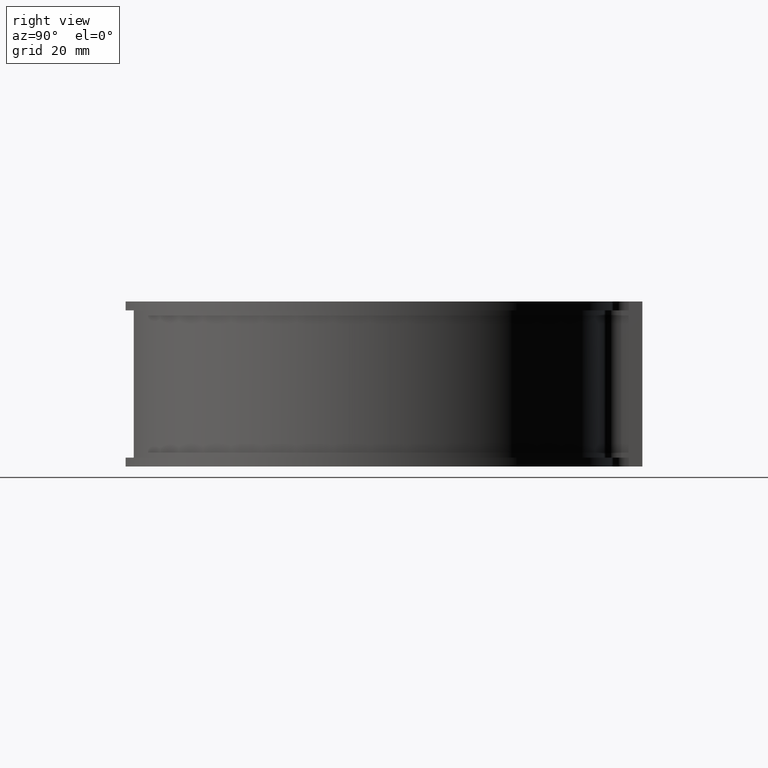
[diagram: clean part render]
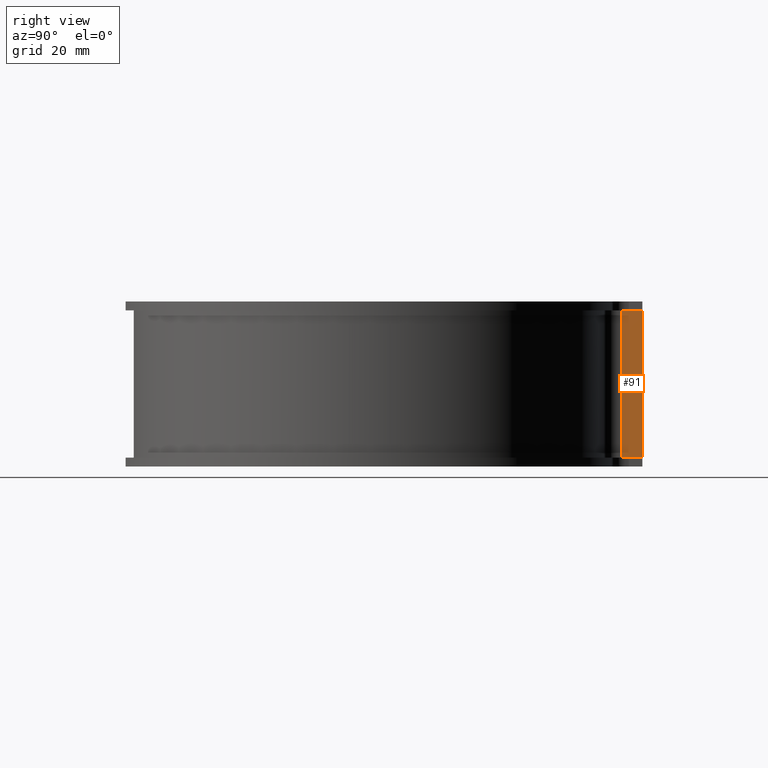
[diagram: same view with one face highlighted and labeled with its STEP entity id]
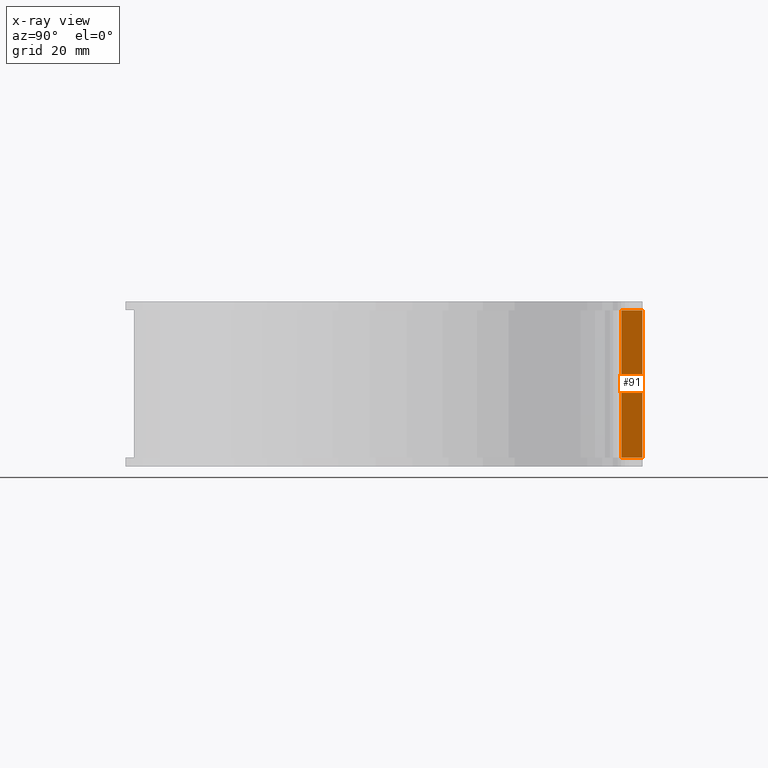
[diagram: x-ray of the same camera — body ghosted, the highlighted face saturated]
A machine part, right view. The second image highlights one B-rep face of the part: STEP entity #91.
The next image is the same camera in x-ray: the body ghosted, the highlighted face saturated — about 0% of this face is hidden behind the body in this view.
In plain terms, the highlighted planar face has unit normal (1, 0, 0).
Its self-contained STEP definition (entity closure, byte-faithful):
#91 = ADVANCED_FACE( '', ( #134 ), #135, .T. );
#134 = FACE_OUTER_BOUND( '', #186, .T. );
#135 = PLANE( '', #187 );
#186 = EDGE_LOOP( '', ( #358, #359, #360, #361 ) );
#187 = AXIS2_PLACEMENT_3D( '', #362, #363, #364 );
#358 = ORIENTED_EDGE( '', *, *, #493, .F. );
#359 = ORIENTED_EDGE( '', *, *, #452, .F. );
#360 = ORIENTED_EDGE( '', *, *, #486, .T. );
#361 = ORIENTED_EDGE( '', *, *, #492, .T. );
#362 = CARTESIAN_POINT( '', ( 4.00000000000000, 42.5784276365391, -14.0000000000000 ) );
#363 = DIRECTION( '', ( 1.00000000000000, 7.53347826932886E-017, 0.000000000000000 ) );
#364 = DIRECTION( '', ( 7.53347826932886E-017, -1.00000000000000, 0.000000000000000 ) );
#452 = EDGE_CURVE( '', #544, #546, #547, .T. );
#486 = EDGE_CURVE( '', #544, #601, #603, .T. );
#492 = EDGE_CURVE( '', #601, #610, #612, .T. );
#493 = EDGE_CURVE( '', #546, #610, #613, .T. );
#544 = VERTEX_POINT( '', #681 );
#546 = VERTEX_POINT( '', #684 );
#547 = LINE( '', #685, #686 );
#601 = VERTEX_POINT( '', #757 );
#603 = LINE( '', #760, #761 );
#610 = VERTEX_POINT( '', #770 );
#612 = LINE( '', #772, #773 );
#613 = LINE( '', #774, #775 );
#681 = CARTESIAN_POINT( '', ( 4.00000000000000, 46.1500000000000, -12.5000000000000 ) );
#684 = CARTESIAN_POINT( '', ( 4.00000000000000, 42.5784276365391, -12.5000000000000 ) );
#685 = CARTESIAN_POINT( '', ( 4.00000000000000, 46.1500000000000, -12.5000000000000 ) );
#686 = VECTOR( '', #824, 1000.00000000000 );
#757 = CARTESIAN_POINT( '', ( 3.99999999999998, 46.1500000000000, 12.5000000000000 ) );
#760 = CARTESIAN_POINT( '', ( 4.00000000000000, 46.1500000000000, -14.0000000000000 ) );
#761 = VECTOR( '', #888, 1000.00000000000 );
#770 = CARTESIAN_POINT( '', ( 4.00000000000000, 42.5784276365391, 12.5000000000000 ) );
#772 = CARTESIAN_POINT( '', ( 4.00000000000000, 46.1500000000000, 12.5000000000000 ) );
#773 = VECTOR( '', #900, 1000.00000000000 );
#774 = CARTESIAN_POINT( '', ( 4.00000000000000, 42.5784276365391, -14.0000000000000 ) );
#775 = VECTOR( '', #901, 1000.00000000000 );
#824 = DIRECTION( '', ( 0.000000000000000, -1.00000000000000, 0.000000000000000 ) );
#888 = DIRECTION( '', ( 0.000000000000000, 0.000000000000000, 1.00000000000000 ) );
#900 = DIRECTION( '', ( 0.000000000000000, -1.00000000000000, 0.000000000000000 ) );
#901 = DIRECTION( '', ( 0.000000000000000, 0.000000000000000, 1.00000000000000 ) );